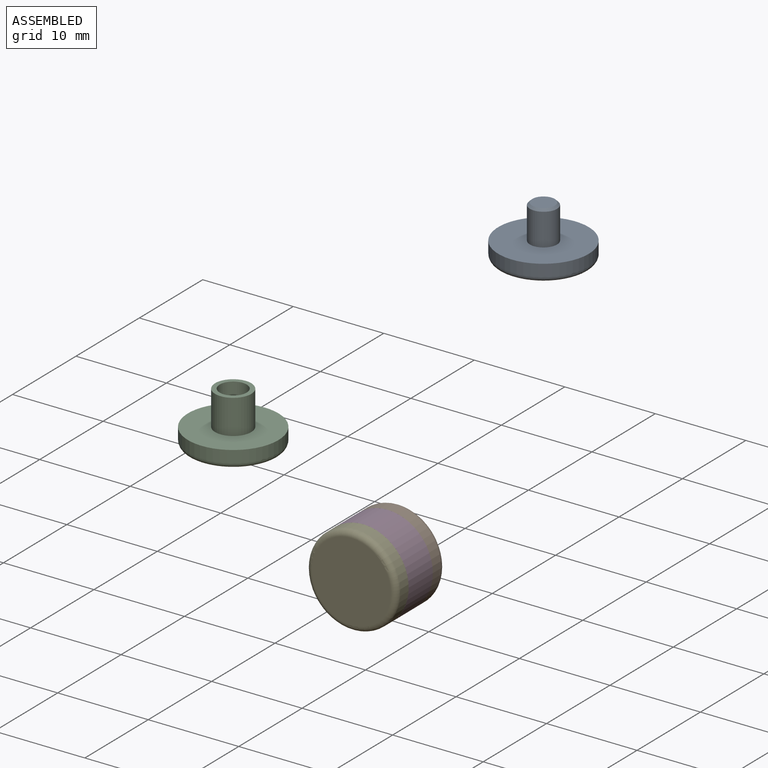
[diagram: assembled view]
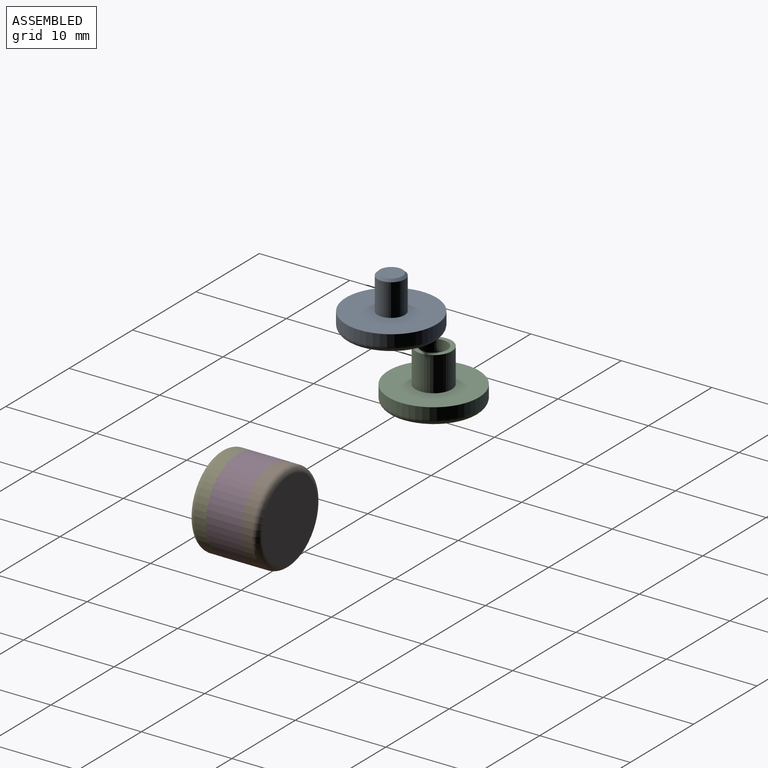
[diagram: assembled view, second angle]
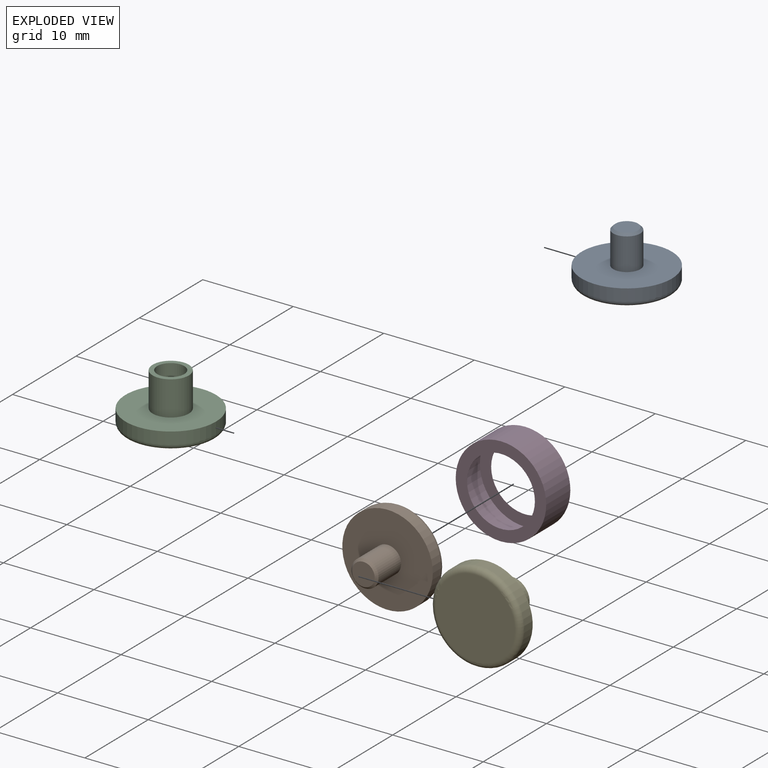
[diagram: exploded view]
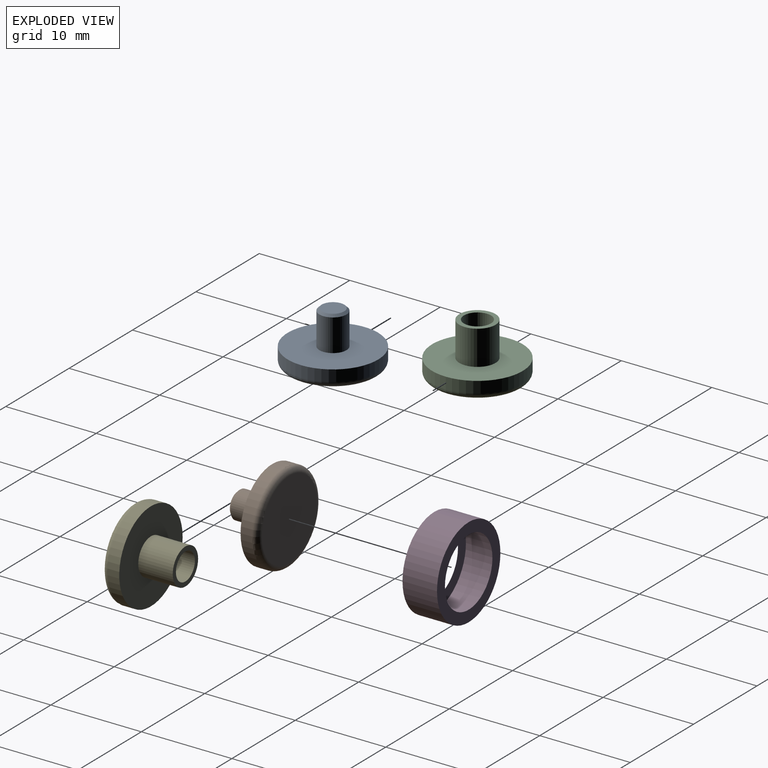
[diagram: exploded view, second angle]
ASSEMBLY  parts=5 mates=2
PART A: 7 faces, bbox 10.8x10.8x5.7 mm
  f0: cylinder r=5mm len=10mm, axis (0,0,-1), area 39.9mm2, adj f1,f5
  f1: plane 10x10mm, normal (0,0,1), area 71.5mm2, adj f0,f3
  f2: plane 8.73x8.73mm, normal (0,0,-1), area 59.9mm2, adj f5
  f3: cylinder r=1.5mm len=3.56mm, axis (0,0,-1), area 33.6mm2, adj f1,f6
  f4: plane 2.5x2.5mm, normal (0,0,1), area 4.9mm2, adj f6
  f5: torus R=4.37mm, axis (0,0,1), area 29.9mm2, adj f0,f2
  f6: cone r=1.25mm half-angle=45deg, axis (0,0,-1), area 3.1mm2, adj f3,f4
PART B: same geometry as A
PART C: 8 faces, bbox 10.8x10.8x5.7 mm
  f0: cylinder r=5mm len=10mm, axis (0,0,-1), area 39.9mm2, adj f1,f7
  f1: plane 10x10mm, normal (0,0,1), area 66mm2, adj f0,f3
  f2: plane 8.73x8.73mm, normal (0,0,-1), area 59.9mm2, adj f7
  f3: cylinder r=2mm len=4mm, axis (0,0,-1), area 47.9mm2, adj f1,f4
  f4: plane 4x4mm, normal (0,0,1), area 5.5mm2, adj f3,f5
  f5: cylinder r=1.5mm len=3.81mm, axis (0,0,1), area 35.9mm2, adj f4,f6
  f6: plane 3x3mm, normal (0,0,1), area 7.1mm2, adj f5
  f7: torus R=4.37mm, axis (0,0,1), area 29.9mm2, adj f0,f2
PART D: 8 faces, bbox 10x10x3.8 mm
  f0: cylinder r=3.75mm len=7.5mm, axis (0,0,1), area 0.2mm2, adj f1,f5
  f1: plane 10x10mm, normal (0,0,1), area 34.4mm2, adj f0,f2
  f2: cylinder r=5mm len=10mm, axis (0,0,-1), area 119.7mm2, adj f1,f3
  f3: plane 10x10mm, normal (0,0,-1), area 34.4mm2, adj f2,f4
  f4: cylinder r=3.75mm len=7.5mm, axis (0,0,1), area 0.2mm2, adj f3,f7
  f5: plane 9.98x9.98mm, normal (0,0,-1), area 34mm2, adj f0,f6
  f6: cylinder r=4.99mm len=9.98mm, axis (0,0,-1), area 118.8mm2, adj f5,f7
  f7: plane 9.98x9.98mm, normal (0,0,1), area 34mm2, adj f4,f6
PART E: same geometry as C
PLACE A t=(-15.6,7.09,9.9)mm
PLACE B rot(axis=(1,0,0),90deg) t=(-20.99,-7.92,-15.05)mm
PLACE C t=(-14.51,-5.87,-10.48)mm
PLACE D rot(axis=(1,0,0),90deg) t=(5.31,-11.73,-15.05)mm
PLACE E rot(axis=(0,0.71,0.71),180deg) t=(5.31,-15.54,-15.05)mm
MATE fastened E.f3 <-> D.f2  axis (0,1,0) through (5.31,-13.63,-15.05)mm
MATE fastened B.f0 <-> E.f3  axis (0,-1,0) through (5.31,-9.82,-15.05)mm
